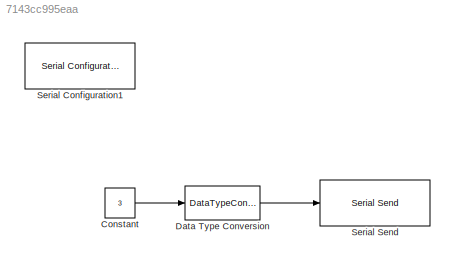
MODEL slx_7143cc995eaa
KIND model
CONFIG AbsTol = auto
CONFIG FixedStep = 0.0001
CONFIG MaxStep = auto
CONFIG MinStep = auto
CONFIG RelTol = 1e-3
CONFIG SampleTimeConstraint = Unconstrained
CONFIG Solver = ode3
CONFIG SolverMode = Auto
CONFIG SolverName = ode3
CONFIG StartTime = 0.0
CONFIG StopTime = 5
BLOCK [Constant] Constant
  SampleTime = -1
  Value = 3
BLOCK [DataTypeConversion] Data Type Conversion
  OutDataTypeStr = int8
  RndMeth = Floor
  SaturateOnIntegerOverflow = off
BLOCK [Reference] Serial Configuration1  REF=instrumentlib/Serial Configuration
  BaudRate = 460800
  ByteOrder = BigEndian
  ComPort = COM3
  ComPortMenu = <Please select a port...>
  DataBits = 8
  FlowControl = none
  ObjConstructor = serial('COM3');
  Parity = none
  Ports = []
  Priority = -200000
  SourceBlock = instrumentlib/Serial Configuration
  SourceType = Serial Configuration
  StopBits = 1
  Timeout = 10
BLOCK [Reference] Serial Send  REF=instrumentlib/Serial Send
  ComPort = COM3
  ComPortMenu = <Please select a port...>
  EnableBlockingMode = off
  ObjConstructor = serial('COM3');
  Ports = [1]
  SourceBlock = instrumentlib/Serial Send
  SourceType = Serial Send
  Terminator = LF ('\n')
LINE Constant:1 -> Data Type Conversion:1
LINE Data Type Conversion:1 -> Serial Send:1
